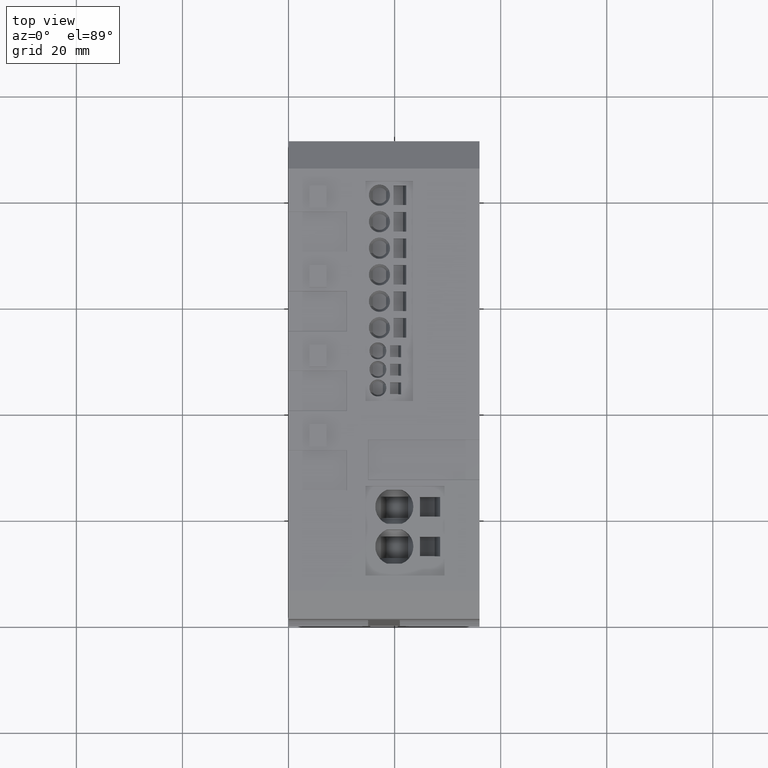
[diagram: clean part render]
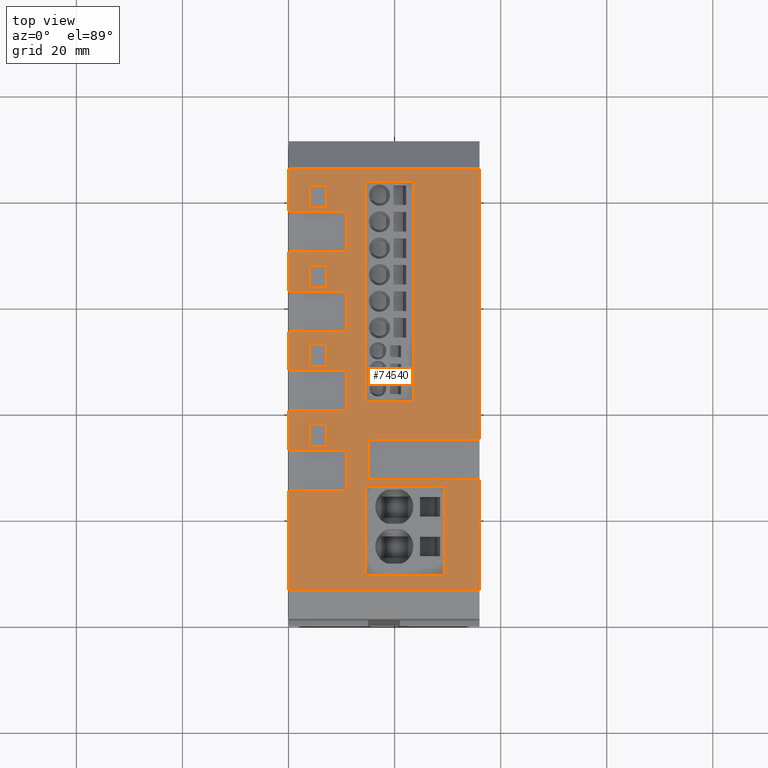
[diagram: same view with one face highlighted and labeled with its STEP entity id]
A machine part, top view. The second image highlights one B-rep face of the part: STEP entity #74540.
In plain terms, the highlighted planar face has unit normal (0, -0, 1).
Its self-contained STEP definition (entity closure, byte-faithful):
#68550=CARTESIAN_POINT('',(77.0000005007023,64.5038479926965,
-34.7997901112069));
#68560=VERTEX_POINT('',#68550);
#68640=CARTESIAN_POINT('',(77.0000005404291,64.5038479926969,
1.20020988879307));
#68650=VERTEX_POINT('',#68640);
#68680=CARTESIAN_POINT('',(77.0000005007023,64.5038479926965,
-34.7997901112069));
#68690=DIRECTION('',(-1.10352373176634E-9,-1.07700885332427E-14,-1.));
#68700=VECTOR('',#68690,1.);
#68710=LINE('',#68680,#68700);
#68720=EDGE_CURVE('',#68650,#68560,#68710,.T.);
#69580=CARTESIAN_POINT('',(77.0000005404292,-15.1038488360872,
1.20020988879308));
#69590=VERTEX_POINT('',#69580);
#69620=CARTESIAN_POINT('',(77.0000005404291,24.6999996755416,
1.20020988879308));
#69630=DIRECTION('',(-6.45317133163569E-16,1.,-7.81061572420262E-24));
#69640=VECTOR('',#69630,1.);
#69650=LINE('',#69620,#69640);
#69660=CARTESIAN_POINT('',(77.0000005404292,5.82375340094222,
1.20020988879308));
#69670=VERTEX_POINT('',#69660);
#69680=EDGE_CURVE('',#69590,#69670,#69650,.T.);
#69900=CARTESIAN_POINT('',(77.0000005404291,13.3762465990578,
1.20020988879308));
#69910=VERTEX_POINT('',#69900);
#69940=CARTESIAN_POINT('',(77.0000005404291,24.6999996755416,
1.20020988879308));
#69950=DIRECTION('',(-6.45317133163569E-16,1.,-7.81061572420262E-24));
#69960=VECTOR('',#69950,1.);
#69970=LINE('',#69940,#69960);
#69980=EDGE_CURVE('',#69910,#68650,#69970,.T.);
#70840=CARTESIAN_POINT('',(77.0000005001508,-13.2925390425689,
-35.2995806920553));
#70850=DIRECTION('',(-1.,-6.45317133163568E-16,1.10352373176634E-9));
#70860=DIRECTION('',(6.45317145048617E-16,-1.,1.07700885325279E-14));
#70870=AXIS2_PLACEMENT_3D('',#70840,#70850,#70860);
#70880=PLANE('',#70870);
#70890=CARTESIAN_POINT('',(77.0000005266353,24.6999996755416,
-11.2995806920557));
#70900=DIRECTION('',(-6.45317145048616E-16,1.,-1.07700885325316E-14));
#70910=VECTOR('',#70900,1.);
#70920=LINE('',#70890,#70910);
#70930=CARTESIAN_POINT('',(77.0000005266353,20.5999999999999,
-11.2995806920557));
#70940=VERTEX_POINT('',#70930);
#70950=CARTESIAN_POINT('',(77.0000005266353,62.0999999999999,
-11.2995806920561));
#70960=VERTEX_POINT('',#70950);
#70970=EDGE_CURVE('',#70940,#70960,#70920,.T.);
#70980=ORIENTED_EDGE('',*,*,#70970,.F.);
#70990=CARTESIAN_POINT('',(77.0000005007023,62.0999999999996,
-34.7997901112069));
#71000=DIRECTION('',(-1.10352373176634E-9,-1.09504997747455E-14,-1.));
#71010=VECTOR('',#71000,1.);
#71020=LINE('',#70990,#71010);
#71030=CARTESIAN_POINT('',(77.0000005167036,62.0999999999998,
-20.2995806920561));
#71040=VERTEX_POINT('',#71030);
#71050=EDGE_CURVE('',#70960,#71040,#71020,.T.);
#71060=ORIENTED_EDGE('',*,*,#71050,.F.);
#71070=CARTESIAN_POINT('',(77.0000005167036,24.6999996755416,
-20.2995806920557));
#71080=DIRECTION('',(6.45317145048616E-16,-1.,1.07700885325316E-14));
#71090=VECTOR('',#71080,1.);
#71100=LINE('',#71070,#71090);
#71110=CARTESIAN_POINT('',(77.0000005167036,20.5999999999998,
-20.2995806920557));
#71120=VERTEX_POINT('',#71110);
#71130=EDGE_CURVE('',#71040,#71120,#71100,.T.);
#71140=ORIENTED_EDGE('',*,*,#71130,.F.);
#71150=CARTESIAN_POINT('',(77.000000538482,20.5999999999997,
-0.564302311562747));
#71160=DIRECTION('',(1.10352373176634E-9,-1.84450079180063E-14,1.));
#71170=VECTOR('',#71160,1.);
#71180=LINE('',#71150,#71170);
#71190=EDGE_CURVE('',#71120,#70940,#71180,.T.);
#71200=ORIENTED_EDGE('',*,*,#71190,.F.);
#71210=EDGE_LOOP('',(#71200,#71140,#71060,#70980));
#71220=FACE_BOUND('',#71210,.T.);
#71230=CARTESIAN_POINT('',(77.0000005050063,24.6999996755416,
-30.8995810068515));
#71240=DIRECTION('',(6.45317132508935E-16,-1.,-5.93221210864828E-16));
#71250=VECTOR('',#71240,1.);
#71260=LINE('',#71230,#71250);
#71270=CARTESIAN_POINT('',(77.0000005050062,61.2679488990339,
-30.8995810068514));
#71280=VERTEX_POINT('',#71270);
#71290=CARTESIAN_POINT('',(77.0000005050062,57.0679488990339,
-30.8995810068514));
#71300=VERTEX_POINT('',#71290);
#71310=EDGE_CURVE('',#71280,#71300,#71260,.T.);
#71320=ORIENTED_EDGE('',*,*,#71310,.F.);
#71330=CARTESIAN_POINT('',(77.0000005007023,57.0679488990339,
-34.7997901112069));
#71340=DIRECTION('',(1.10352373176634E-9,-1.97162156541734E-16,1.));
#71350=VECTOR('',#71340,1.);
#71360=LINE('',#71330,#71350);
#71370=CARTESIAN_POINT('',(77.0000005085927,57.0679488990339,
-27.6495810068515));
#71380=VERTEX_POINT('',#71370);
#71390=EDGE_CURVE('',#71300,#71380,#71360,.T.);
#71400=ORIENTED_EDGE('',*,*,#71390,.F.);
#71410=CARTESIAN_POINT('',(77.0000005085927,24.6999996755416,
-27.6495810068515));
#71420=DIRECTION('',(-6.45317132509892E-16,1.,5.9235384912684E-16));
#71430=VECTOR('',#71420,1.);
#71440=LINE('',#71410,#71430);
#71450=CARTESIAN_POINT('',(77.0000005085927,61.2679488990339,
-27.6495810068515));
#71460=VERTEX_POINT('',#71450);
#71470=EDGE_CURVE('',#71380,#71460,#71440,.T.);
#71480=ORIENTED_EDGE('',*,*,#71470,.F.);
#71490=CARTESIAN_POINT('',(77.0000005007023,61.2679488990339,
-34.7997901112069));
#71500=DIRECTION('',(-1.10352373176634E-9,5.91486486674709E-16,-1.));
#71510=VECTOR('',#71500,1.);
#71520=LINE('',#71490,#71510);
#71530=EDGE_CURVE('',#71460,#71280,#71520,.T.);
#71540=ORIENTED_EDGE('',*,*,#71530,.F.);
#71550=EDGE_LOOP('',(#71540,#71480,#71400,#71320));
#71560=FACE_BOUND('',#71550,.T.);
#71570=CARTESIAN_POINT('',(77.0000005085927,24.6999996755416,
-27.6495810068515));
#71580=DIRECTION('',(-6.45317132509892E-16,1.,5.9235384912684E-16));
#71590=VECTOR('',#71580,1.);
#71600=LINE('',#71570,#71590);
#71610=CARTESIAN_POINT('',(77.0000005085927,27.0679488990339,
-27.6495810068515));
#71620=VERTEX_POINT('',#71610);
#71630=CARTESIAN_POINT('',(77.0000005085927,31.2679488990339,
-27.6495810068515));
#71640=VERTEX_POINT('',#71630);
#71650=EDGE_CURVE('',#71620,#71640,#71600,.T.);
#71660=ORIENTED_EDGE('',*,*,#71650,.F.);
#71670=CARTESIAN_POINT('',(77.0000005007023,31.2679488990339,
-34.7997901112069));
#71680=DIRECTION('',(-1.10352373176634E-9,5.91486486674709E-16,-1.));
#71690=VECTOR('',#71680,1.);
#71700=LINE('',#71670,#71690);
#71710=CARTESIAN_POINT('',(77.0000005050063,31.2679488990339,
-30.8995810068515));
#71720=VERTEX_POINT('',#71710);
#71730=EDGE_CURVE('',#71640,#71720,#71700,.T.);
#71740=ORIENTED_EDGE('',*,*,#71730,.F.);
#71750=CARTESIAN_POINT('',(77.0000005050063,24.6999996755416,
-30.8995810068515));
#71760=DIRECTION('',(6.45317132508935E-16,-1.,-5.93221210864828E-16));
#71770=VECTOR('',#71760,1.);
#71780=LINE('',#71750,#71770);
#71790=CARTESIAN_POINT('',(77.0000005050063,27.0679488990339,
-30.8995810068515));
#71800=VERTEX_POINT('',#71790);
#71810=EDGE_CURVE('',#71720,#71800,#71780,.T.);
#71820=ORIENTED_EDGE('',*,*,#71810,.F.);
#71830=CARTESIAN_POINT('',(77.0000005007023,27.0679488990339,
-34.7997901112069));
#71840=DIRECTION('',(1.10352373176634E-9,-1.97162156541734E-16,1.));
#71850=VECTOR('',#71840,1.);
#71860=LINE('',#71830,#71850);
#71870=EDGE_CURVE('',#71800,#71620,#71860,.T.);
#71880=ORIENTED_EDGE('',*,*,#71870,.F.);
#71890=EDGE_LOOP('',(#71880,#71820,#71740,#71660));
#71900=FACE_BOUND('',#71890,.T.);
#71910=CARTESIAN_POINT('',(77.0000005007023,42.0679488990339,
-34.7997901112069));
#71920=DIRECTION('',(1.10352373176634E-9,-1.97162156541734E-16,1.));
#71930=VECTOR('',#71920,1.);
#71940=LINE('',#71910,#71930);
#71950=CARTESIAN_POINT('',(77.0000005050063,42.0679488990339,
-30.8995810068514));
#71960=VERTEX_POINT('',#71950);
#71970=CARTESIAN_POINT('',(77.0000005085927,42.0679488990339,
-27.6495810068515));
#71980=VERTEX_POINT('',#71970);
#71990=EDGE_CURVE('',#71960,#71980,#71940,.T.);
#72000=ORIENTED_EDGE('',*,*,#71990,.F.);
#72010=CARTESIAN_POINT('',(77.0000005085927,24.6999996755416,
-27.6495810068515));
#72020=DIRECTION('',(-6.45317132509892E-16,1.,5.9235384912684E-16));
#72030=VECTOR('',#72020,1.);
#72040=LINE('',#72010,#72030);
#72050=CARTESIAN_POINT('',(77.0000005085927,46.2679488990339,
-27.6495810068515));
#72060=VERTEX_POINT('',#72050);
#72070=EDGE_CURVE('',#71980,#72060,#72040,.T.);
#72080=ORIENTED_EDGE('',*,*,#72070,.F.);
#72090=CARTESIAN_POINT('',(77.0000005007023,46.2679488990339,
-34.7997901112069));
#72100=DIRECTION('',(-1.10352373176634E-9,5.91486486674709E-16,-1.));
#72110=VECTOR('',#72100,1.);
#72120=LINE('',#72090,#72110);
#72130=CARTESIAN_POINT('',(77.0000005050063,46.2679488990339,
-30.8995810068514));
#72140=VERTEX_POINT('',#72130);
#72150=EDGE_CURVE('',#72060,#72140,#72120,.T.);
#72160=ORIENTED_EDGE('',*,*,#72150,.F.);
#72170=CARTESIAN_POINT('',(77.0000005050063,24.6999996755416,
-30.8995810068515));
#72180=DIRECTION('',(6.45317132508935E-16,-1.,-5.93221210864828E-16));
#72190=VECTOR('',#72180,1.);
#72200=LINE('',#72170,#72190);
#72210=EDGE_CURVE('',#72140,#71960,#72200,.T.);
#72220=ORIENTED_EDGE('',*,*,#72210,.F.);
#72230=EDGE_LOOP('',(#72220,#72160,#72080,#72000));
#72240=FACE_BOUND('',#72230,.T.);
#72250=CARTESIAN_POINT('',(77.0000005007023,16.2679488990339,
-34.7997901112069));
#72260=DIRECTION('',(-1.10352373176634E-9,5.91486486674709E-16,-1.));
#72270=VECTOR('',#72260,1.);
#72280=LINE('',#72250,#72270);
#72290=CARTESIAN_POINT('',(77.0000005085927,16.2679488990339,
-27.6495810068515));
#72300=VERTEX_POINT('',#72290);
#72310=CARTESIAN_POINT('',(77.0000005050063,16.2679488990339,
-30.8995810068515));
#72320=VERTEX_POINT('',#72310);
#72330=EDGE_CURVE('',#72300,#72320,#72280,.T.);
#72340=ORIENTED_EDGE('',*,*,#72330,.F.);
#72350=CARTESIAN_POINT('',(77.0000005050063,24.6999996755416,
-30.8995810068515));
#72360=DIRECTION('',(6.45317132508935E-16,-1.,-5.93221210864828E-16));
#72370=VECTOR('',#72360,1.);
#72380=LINE('',#72350,#72370);
#72390=CARTESIAN_POINT('',(77.0000005050063,12.0679488990339,
-30.8995810068515));
#72400=VERTEX_POINT('',#72390);
#72410=EDGE_CURVE('',#72320,#72400,#72380,.T.);
#72420=ORIENTED_EDGE('',*,*,#72410,.F.);
#72430=CARTESIAN_POINT('',(77.0000005007023,12.0679488990339,
-34.7997901112069));
#72440=DIRECTION('',(1.10352373176634E-9,-1.97162156541734E-16,1.));
#72450=VECTOR('',#72440,1.);
#72460=LINE('',#72430,#72450);
#72470=CARTESIAN_POINT('',(77.0000005085927,12.0679488990339,
-27.6495810068515));
#72480=VERTEX_POINT('',#72470);
#72490=EDGE_CURVE('',#72400,#72480,#72460,.T.);
#72500=ORIENTED_EDGE('',*,*,#72490,.F.);
#72510=CARTESIAN_POINT('',(77.0000005085927,24.6999996755416,
-27.6495810068515));
#72520=DIRECTION('',(-6.45317132509892E-16,1.,5.9235384912684E-16));
#72530=VECTOR('',#72520,1.);
#72540=LINE('',#72510,#72530);
#72550=EDGE_CURVE('',#72480,#72300,#72540,.T.);
#72560=ORIENTED_EDGE('',*,*,#72550,.F.);
#72570=EDGE_LOOP('',(#72560,#72500,#72420,#72340));
#72580=FACE_BOUND('',#72570,.T.);
#72590=CARTESIAN_POINT('',(77.0000005167036,24.6999996755416,
-20.2995806920557));
#72600=DIRECTION('',(6.45317145048616E-16,-1.,1.07700885325316E-14));
#72610=VECTOR('',#72600,1.);
#72620=LINE('',#72590,#72610);
#72630=CARTESIAN_POINT('',(77.0000005167036,4.59999999999978,
-20.2995806920555));
#72640=VERTEX_POINT('',#72630);
#72650=CARTESIAN_POINT('',(77.0000005167036,-12.3000000000002,
-20.2995806920553));
#72660=VERTEX_POINT('',#72650);
#72670=EDGE_CURVE('',#72640,#72660,#72620,.T.);
#72680=ORIENTED_EDGE('',*,*,#72670,.F.);
#72690=CARTESIAN_POINT('',(77.0000005007023,-12.3000000000004,
-34.7997901112069));
#72700=DIRECTION('',(1.10352373176634E-9,1.07700885332439E-14,1.));
#72710=VECTOR('',#72700,1.);
#72720=LINE('',#72690,#72710);
#72730=CARTESIAN_POINT('',(77.0000005331461,-12.3000000000001,
-5.39958069203849));
#72740=VERTEX_POINT('',#72730);
#72750=EDGE_CURVE('',#72660,#72740,#72720,.T.);
#72760=ORIENTED_EDGE('',*,*,#72750,.F.);
#72770=CARTESIAN_POINT('',(77.0000005331461,24.6999996755416,
-5.39958069203889));
#72780=DIRECTION('',(-6.45317145048616E-16,1.,-1.07700885325316E-14));
#72790=VECTOR('',#72780,1.);
#72800=LINE('',#72770,#72790);
#72810=CARTESIAN_POINT('',(77.0000005331461,4.59999999999994,
-5.39958069203867));
#72820=VERTEX_POINT('',#72810);
#72830=EDGE_CURVE('',#72740,#72820,#72800,.T.);
#72840=ORIENTED_EDGE('',*,*,#72830,.F.);
#72850=CARTESIAN_POINT('',(77.0000005007023,4.59999999999962,
-34.7997901112069));
#72860=DIRECTION('',(-1.10352373176634E-9,-1.07700885332439E-14,-1.));
#72870=VECTOR('',#72860,1.);
#72880=LINE('',#72850,#72870);
#72890=EDGE_CURVE('',#72820,#72640,#72880,.T.);
#72900=ORIENTED_EDGE('',*,*,#72890,.F.);
#72910=EDGE_LOOP('',(#72900,#72840,#72760,#72680));
#72920=FACE_BOUND('',#72910,.T.);
#72930=ORIENTED_EDGE('',*,*,#69680,.T.);
#72940=CARTESIAN_POINT('',(77.0000005007023,-15.1038488360876,
-34.7997901112069));
#72950=DIRECTION('',(1.10352373176634E-9,1.07700885332427E-14,1.));
#72960=VECTOR('',#72950,1.);
#72970=LINE('',#72940,#72960);
#72980=CARTESIAN_POINT('',(77.0000005007023,-15.1038488360876,
-34.7997901112069));
#72990=VERTEX_POINT('',#72980);
#73000=EDGE_CURVE('',#72990,#69590,#72970,.T.);
#73010=ORIENTED_EDGE('',*,*,#73000,.T.);
#73020=CARTESIAN_POINT('',(77.0000005007023,24.6999996755416,
-34.7997901112069));
#73030=DIRECTION('',(6.45317133163569E-16,-1.,7.81087032905978E-24));
#73040=VECTOR('',#73030,1.);
#73050=LINE('',#73020,#73040);
#73060=CARTESIAN_POINT('',(77.0000005007023,3.79178229997589,
-34.7997901112069));
#73070=VERTEX_POINT('',#73060);
#73080=EDGE_CURVE('',#73070,#72990,#73050,.T.);
#73090=ORIENTED_EDGE('',*,*,#73080,.T.);
#73100=CARTESIAN_POINT('',(77.0000005007023,3.79178229997589,
-34.7997901112069));
#73110=DIRECTION('',(1.10352373176634E-9,1.14160364748211E-14,1.));
#73120=VECTOR('',#73110,1.);
#73130=LINE('',#73100,#73120);
#73140=CARTESIAN_POINT('',(77.0000005128703,3.79178229997601,
-23.7733341117712));
#73150=VERTEX_POINT('',#73140);
#73160=EDGE_CURVE('',#73070,#73150,#73130,.T.);
#73170=ORIENTED_EDGE('',*,*,#73160,.F.);
#73180=CARTESIAN_POINT('',(77.0000005128702,24.6999996755416,
-23.7733341117714));
#73190=DIRECTION('',(-6.45317145048617E-16,1.,-1.07700885325354E-14));
#73200=VECTOR('',#73190,1.);
#73210=LINE('',#73180,#73200);
#73220=CARTESIAN_POINT('',(77.0000005128702,11.3442754980916,
-23.7733341117712));
#73230=VERTEX_POINT('',#73220);
#73240=EDGE_CURVE('',#73150,#73230,#73210,.T.);
#73250=ORIENTED_EDGE('',*,*,#73240,.F.);
#73260=CARTESIAN_POINT('',(77.0000005007023,11.3442754980914,
-34.7997901112069));
#73270=DIRECTION('',(-1.10352373176634E-9,-1.14160364748669E-14,-1.));
#73280=VECTOR('',#73270,1.);
#73290=LINE('',#73260,#73280);
#73300=CARTESIAN_POINT('',(77.0000005007023,11.3442754980914,
-34.7997901112069));
#73310=VERTEX_POINT('',#73300);
#73320=EDGE_CURVE('',#73230,#73310,#73290,.T.);
#73330=ORIENTED_EDGE('',*,*,#73320,.F.);
#73340=CARTESIAN_POINT('',(77.0000005007023,24.6999996755416,
-34.7997901112069));
#73350=DIRECTION('',(6.45317133163569E-16,-1.,7.81087032905978E-24));
#73360=VECTOR('',#73350,1.);
#73370=LINE('',#73340,#73360);
#73380=CARTESIAN_POINT('',(77.0000005007023,18.7917822999759,
-34.7997901112069));
#73390=VERTEX_POINT('',#73380);
#73400=EDGE_CURVE('',#73390,#73310,#73370,.T.);
#73410=ORIENTED_EDGE('',*,*,#73400,.T.);
#73420=CARTESIAN_POINT('',(77.0000005007023,18.7917822999759,
-34.7997901112069));
#73430=DIRECTION('',(1.10352373176634E-9,1.0770088533221E-14,1.));
#73440=VECTOR('',#73430,1.);
#73450=LINE('',#73420,#73440);
#73460=CARTESIAN_POINT('',(77.0000005128702,18.791782299976,
-23.7733341117713));
#73470=VERTEX_POINT('',#73460);
#73480=EDGE_CURVE('',#73390,#73470,#73450,.T.);
#73490=ORIENTED_EDGE('',*,*,#73480,.F.);
#73500=CARTESIAN_POINT('',(77.0000005128702,24.6999996755416,
-23.7733341117714));
#73510=DIRECTION('',(-6.45317145048617E-16,1.,-1.07700885325354E-14));
#73520=VECTOR('',#73510,1.);
#73530=LINE('',#73500,#73520);
#73540=CARTESIAN_POINT('',(77.0000005128702,26.3442754980916,
-23.7733341117714));
#73550=VERTEX_POINT('',#73540);
#73560=EDGE_CURVE('',#73470,#73550,#73530,.T.);
#73570=ORIENTED_EDGE('',*,*,#73560,.F.);
#73580=CARTESIAN_POINT('',(77.0000005007023,26.3442754980915,
-34.7997901112069));
#73590=DIRECTION('',(-1.10352373176634E-9,-1.07700885332668E-14,-1.));
#73600=VECTOR('',#73590,1.);
#73610=LINE('',#73580,#73600);
#73620=CARTESIAN_POINT('',(77.0000005007023,26.3442754980915,
-34.7997901112069));
#73630=VERTEX_POINT('',#73620);
#73640=EDGE_CURVE('',#73550,#73630,#73610,.T.);
#73650=ORIENTED_EDGE('',*,*,#73640,.F.);
#73660=CARTESIAN_POINT('',(77.0000005007023,24.6999996755416,
-34.7997901112069));
#73670=DIRECTION('',(6.45317133163569E-16,-1.,7.81087032905978E-24));
#73680=VECTOR('',#73670,1.);
#73690=LINE('',#73660,#73680);
#73700=CARTESIAN_POINT('',(77.0000005007023,33.7917822999759,
-34.7997901112069));
#73710=VERTEX_POINT('',#73700);
#73720=EDGE_CURVE('',#73710,#73630,#73690,.T.);
#73730=ORIENTED_EDGE('',*,*,#73720,.T.);
#73740=CARTESIAN_POINT('',(77.0000005007023,33.7917822999759,
-34.7997901112069));
#73750=DIRECTION('',(1.10352373176634E-9,1.06086015478209E-14,1.));
#73760=VECTOR('',#73750,1.);
#73770=LINE('',#73740,#73760);
#73780=CARTESIAN_POINT('',(77.0000005128702,33.791782299976,
-23.7733341117715));
#73790=VERTEX_POINT('',#73780);
#73800=EDGE_CURVE('',#73710,#73790,#73770,.T.);
#73810=ORIENTED_EDGE('',*,*,#73800,.F.);
#73820=CARTESIAN_POINT('',(77.0000005128702,41.3442754980916,
-23.7733341117716));
#73830=VERTEX_POINT('',#73820);
#73840=EDGE_CURVE('',#73790,#73830,#73530,.T.);
#73850=ORIENTED_EDGE('',*,*,#73840,.F.);
#73860=CARTESIAN_POINT('',(77.0000005007023,41.3442754980915,
-34.7997901112069));
#73870=DIRECTION('',(-1.10352373176634E-9,-1.04471145624667E-14,-1.));
#73880=VECTOR('',#73870,1.);
#73890=LINE('',#73860,#73880);
#73900=CARTESIAN_POINT('',(77.0000005007023,41.3442754980915,
-34.7997901112069));
#73910=VERTEX_POINT('',#73900);
#73920=EDGE_CURVE('',#73830,#73910,#73890,.T.);
#73930=ORIENTED_EDGE('',*,*,#73920,.F.);
#73940=CARTESIAN_POINT('',(77.0000005007023,24.6999996755416,
-34.7997901112069));
#73950=DIRECTION('',(6.45317133163569E-16,-1.,7.81087032905978E-24));
#73960=VECTOR('',#73950,1.);
#73970=LINE('',#73940,#73960);
#73980=CARTESIAN_POINT('',(77.0000005007023,48.7916392993018,
-34.7997901112069));
#73990=VERTEX_POINT('',#73980);
#74000=EDGE_CURVE('',#73990,#73910,#73970,.T.);
#74010=ORIENTED_EDGE('',*,*,#74000,.T.);
#74020=CARTESIAN_POINT('',(77.0000005007023,48.7916392993018,
-34.7997901112069));
#74030=DIRECTION('',(1.10352373176634E-9,1.0770088533221E-14,1.));
#74040=VECTOR('',#74030,1.);
#74050=LINE('',#74020,#74040);
#74060=CARTESIAN_POINT('',(77.0000005128702,48.7916392993019,
-23.7733341117716));
#74070=VERTEX_POINT('',#74060);
#74080=EDGE_CURVE('',#73990,#74070,#74050,.T.);
#74090=ORIENTED_EDGE('',*,*,#74080,.F.);
#74100=CARTESIAN_POINT('',(77.0000005128702,56.3442322356781,
-23.7733341117717));
#74110=VERTEX_POINT('',#74100);
#74120=EDGE_CURVE('',#74070,#74110,#73530,.T.);
#74130=ORIENTED_EDGE('',*,*,#74120,.F.);
#74140=CARTESIAN_POINT('',(77.0000005007023,56.3444183815963,
-34.7997901112069));
#74150=DIRECTION('',(-1.10352373162047E-9,1.68817540460488E-5,
-0.999999999857504));
#74160=VECTOR('',#74150,1.);
#74170=LINE('',#74140,#74160);
#74180=CARTESIAN_POINT('',(77.0000005007023,56.3444183815963,
-34.7997901112069));
#74190=VERTEX_POINT('',#74180);
#74200=EDGE_CURVE('',#74110,#74190,#74170,.T.);
#74210=ORIENTED_EDGE('',*,*,#74200,.F.);
#74220=CARTESIAN_POINT('',(77.0000005007023,24.6999996755416,
-34.7997901112069));
#74230=DIRECTION('',(6.45317133163569E-16,-1.,7.81087032905978E-24));
#74240=VECTOR('',#74230,1.);
#74250=LINE('',#74220,#74240);
#74260=EDGE_CURVE('',#68560,#74190,#74250,.T.);
#74270=ORIENTED_EDGE('',*,*,#74260,.T.);
#74280=ORIENTED_EDGE('',*,*,#68720,.T.);
#74290=ORIENTED_EDGE('',*,*,#69980,.T.);
#74300=CARTESIAN_POINT('',(77.0000005007023,13.3762465990574,
-34.7997901112069));
#74310=DIRECTION('',(-1.10352373176634E-9,-1.07700885332668E-14,-1.));
#74320=VECTOR('',#74310,1.);
#74330=LINE('',#74300,#74320);
#74340=CARTESIAN_POINT('',(77.000000517226,13.3762465990576,
-19.8262461294158));
#74350=VERTEX_POINT('',#74340);
#74360=EDGE_CURVE('',#69910,#74350,#74330,.T.);
#74370=ORIENTED_EDGE('',*,*,#74360,.F.);
#74380=CARTESIAN_POINT('',(77.0000005172259,24.6999996755416,
-19.8262461294159));
#74390=DIRECTION('',(6.45317145048617E-16,-1.,1.07700885325278E-14));
#74400=VECTOR('',#74390,1.);
#74410=LINE('',#74380,#74400);
#74420=CARTESIAN_POINT('',(77.000000517226,5.82375340094199,
-19.8262461294157));
#74430=VERTEX_POINT('',#74420);
#74440=EDGE_CURVE('',#74350,#74430,#74410,.T.);
#74450=ORIENTED_EDGE('',*,*,#74440,.F.);
#74460=CARTESIAN_POINT('',(77.0000005007023,5.82375340094183,
-34.7997901112069));
#74470=DIRECTION('',(1.10352373176634E-9,1.0770088533221E-14,1.));
#74480=VECTOR('',#74470,1.);
#74490=LINE('',#74460,#74480);
#74500=EDGE_CURVE('',#74430,#69670,#74490,.T.);
#74510=ORIENTED_EDGE('',*,*,#74500,.F.);
#74520=EDGE_LOOP('',(#74510,#74450,#74370,#74290,#74280,#74270,#74210,
#74130,#74090,#74010,#73930,#73850,#73810,#73730,#73650,#73570,#73490,
#73410,#73330,#73250,#73170,#73090,#73010,#72930));
#74530=FACE_OUTER_BOUND('',#74520,.T.);
#74540=ADVANCED_FACE('',(#71220,#71560,#71900,#72240,#72580,#72920,
#74530),#70880,.T.);